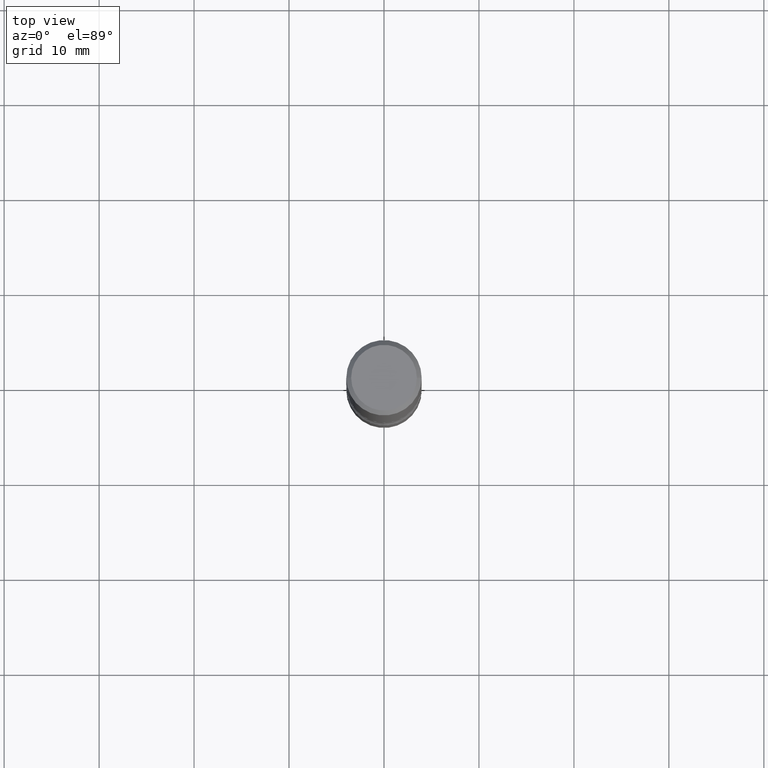
[diagram: clean part render]
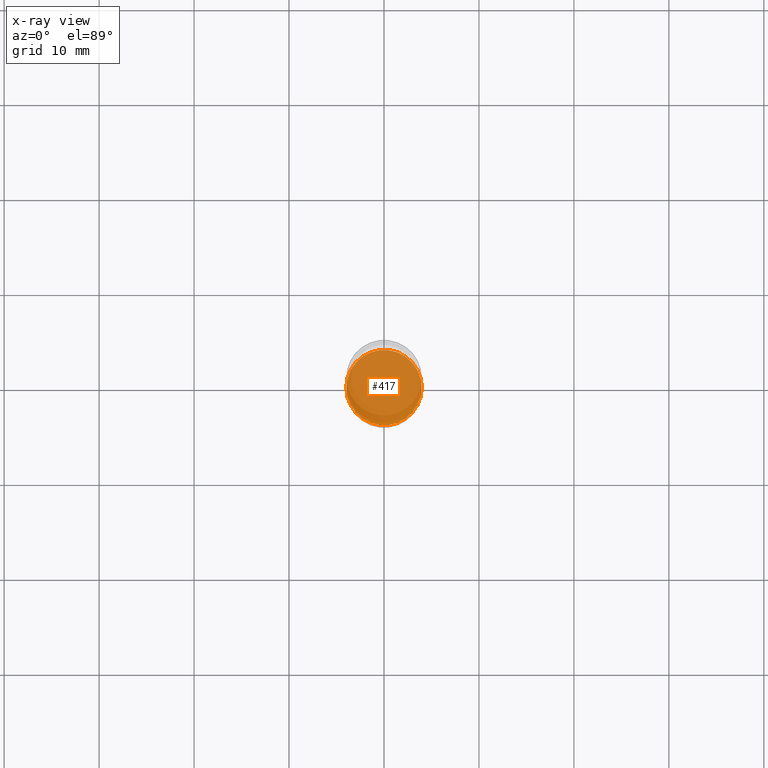
[diagram: x-ray — body ghosted, one internal face saturated and labeled with its STEP entity id]
A machine part, top view, then the same camera in x-ray: the body is ghosted and one INTERNAL B-rep face — a face not visible from any outside direction — is saturated and labeled: STEP entity #417.
In plain terms, the highlighted planar face has unit normal (0, -0, -1).
Its self-contained STEP definition (entity closure, byte-faithful):
#68 = DIRECTION ( 'NONE',  ( 1.000000000000000000, -6.982962677686270655E-15, 0.000000000000000000 ) ) ;
#72 = AXIS2_PLACEMENT_3D ( 'NONE', #376, #278, #161 ) ;
#81 = DIRECTION ( 'NONE',  ( -2.445468806185136597E-29, 3.491481338843145583E-15, 1.000000000000000000 ) ) ;
#87 = EDGE_CURVE ( 'NONE', #300, #261, #437, .T. ) ;
#114 = PLANE ( 'NONE',  #72 ) ;
#140 = AXIS2_PLACEMENT_3D ( 'NONE', #199, #81, #418 ) ;
#161 = DIRECTION ( 'NONE',  ( -1.000000000000000000, 6.982962677686265922E-15, -4.876176775795935793E-29 ) ) ;
#184 = CARTESIAN_POINT ( 'NONE',  ( 5.807988414689700538E-29, -8.292268179752471696E-15, -2.375000000000000444 ) ) ;
#199 = CARTESIAN_POINT ( 'NONE',  ( 5.807988414689700538E-29, -8.292268179752471696E-15, -2.375000000000000444 ) ) ;
#242 = DIRECTION ( 'NONE',  ( -2.445468806185136597E-29, 3.491481338843145583E-15, 1.000000000000000000 ) ) ;
#243 = FACE_OUTER_BOUND ( 'NONE', #351, .T. ) ;
#261 = VERTEX_POINT ( 'NONE', #458 ) ;
#263 = ORIENTED_EDGE ( 'NONE', *, *, #405, .T. ) ;
#278 = DIRECTION ( 'NONE',  ( 2.438088387897960049E-29, -3.491481338843145188E-15, -1.000000000000000000 ) ) ;
#300 = VERTEX_POINT ( 'NONE', #398 ) ;
#302 = ORIENTED_EDGE ( 'NONE', *, *, #87, .T. ) ;
#351 = EDGE_LOOP ( 'NONE', ( #302, #263 ) ) ;
#376 = CARTESIAN_POINT ( 'NONE',  ( 5.807988414689700538E-29, -8.292268179752471696E-15, -2.375000000000000444 ) ) ;
#398 = CARTESIAN_POINT ( 'NONE',  ( 0.1562500000000001110, -9.383356098140953236E-15, -2.375000000000000444 ) ) ;
#405 = EDGE_CURVE ( 'NONE', #261, #300, #429, .T. ) ;
#417 = ADVANCED_FACE ( 'NONE', ( #243 ), #114, .F. ) ;
#418 = DIRECTION ( 'NONE',  ( 1.000000000000000000, -6.982962677686270655E-15, 0.000000000000000000 ) ) ;
#429 = CIRCLE ( 'NONE', #140, 0.1562500000000001110 ) ;
#437 = CIRCLE ( 'NONE', #536, 0.1562500000000001110 ) ;
#458 = CARTESIAN_POINT ( 'NONE',  ( -0.1562500000000001110, -8.255675666821583237E-15, -2.375000000000000444 ) ) ;
#536 = AXIS2_PLACEMENT_3D ( 'NONE', #184, #242, #68 ) ;